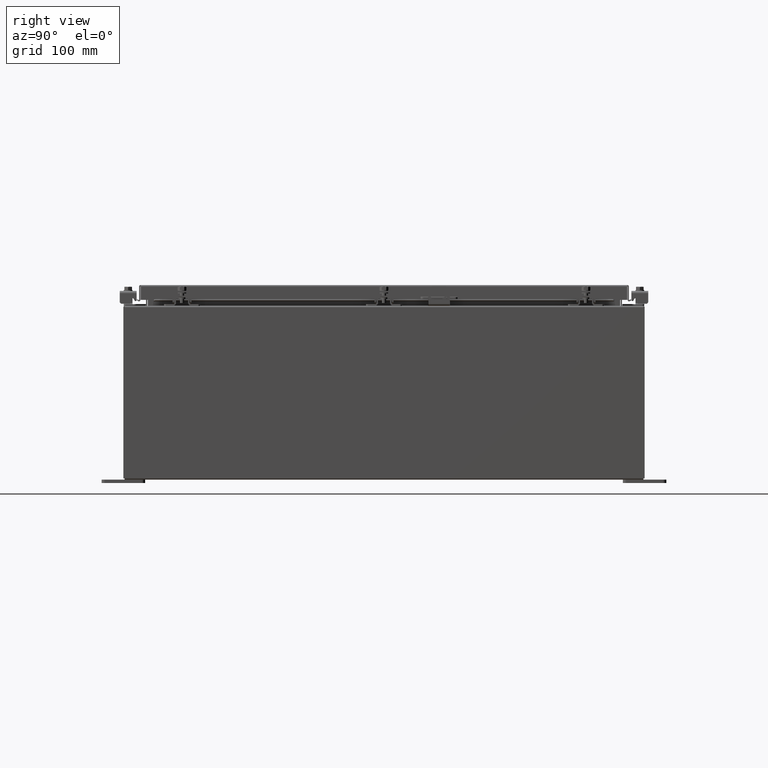
[diagram: clean part render]
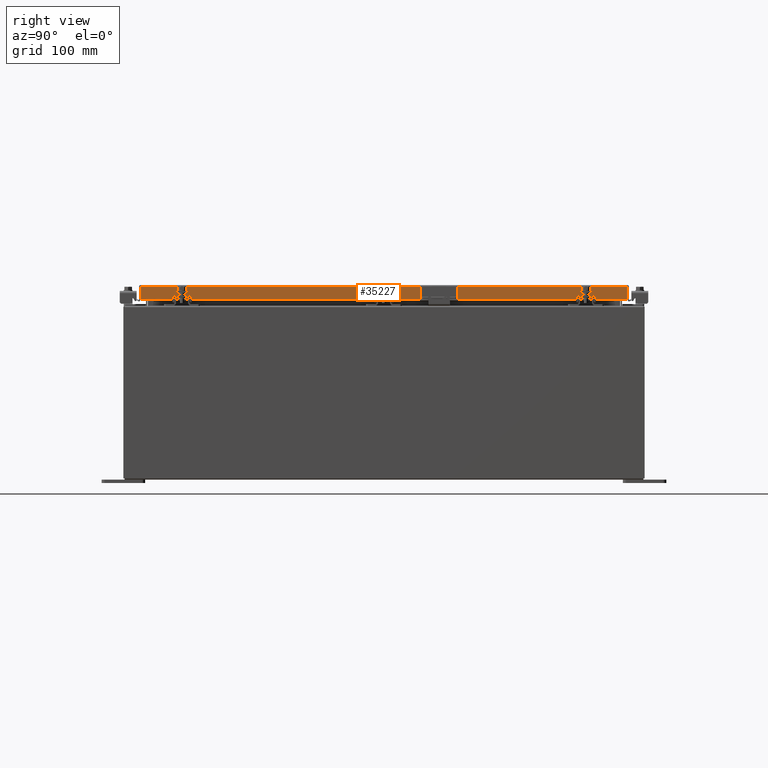
[diagram: same view with one face highlighted and labeled with its STEP entity id]
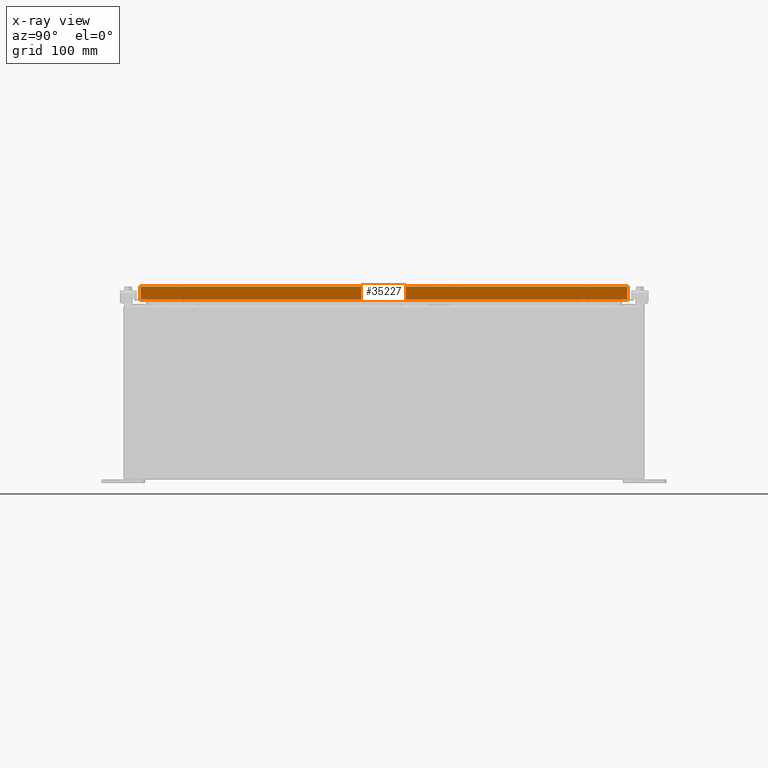
[diagram: x-ray of the same camera — body ghosted, the highlighted face saturated]
A machine part, right view. The second image highlights one B-rep face of the part: STEP entity #35227.
The next image is the same camera in x-ray: the body ghosted, the highlighted face saturated — about 0% of this face is hidden behind the body in this view.
In plain terms, the highlighted planar face has unit normal (1, 0, 0).
Its self-contained STEP definition (entity closure, byte-faithful):
#100 = LINE ( 'NONE', #961, #23306 ) ;
#418 = VERTEX_POINT ( 'NONE', #11889 ) ;
#767 = DIRECTION ( 'NONE',  ( -2.818880942772360100E-015, -6.982962677686265900E-015, 1.000000000000000000 ) ) ;
#961 = CARTESIAN_POINT ( 'NONE',  ( 11.07799999999999900, 14.00515786437626900, 1.292858714020875700E-013 ) ) ;
#1228 = DIRECTION ( 'NONE',  ( 0.0000000000000000000, -1.000000000000000000, 0.0000000000000000000 ) ) ;
#2244 = DIRECTION ( 'NONE',  ( 1.000000000000000000, 0.0000000000000000000, 2.818880942772360100E-015 ) ) ;
#2644 = CARTESIAN_POINT ( 'NONE',  ( 11.07800000000000300, -14.00515786437626400, -0.8499999999999996400 ) ) ;
#2858 = VECTOR ( 'NONE', #1228, 39.37007874015748100 ) ;
#3362 = ORIENTED_EDGE ( 'NONE', *, *, #13380, .F. ) ;
#3837 = ORIENTED_EDGE ( 'NONE', *, *, #12680, .F. ) ;
#6672 = ORIENTED_EDGE ( 'NONE', *, *, #8806, .F. ) ;
#8385 = DIRECTION ( 'NONE',  ( 0.0000000000000000000, -1.000000000000000000, 0.0000000000000000000 ) ) ;
#8425 = VECTOR ( 'NONE', #8671, 39.37007874015748100 ) ;
#8447 = VERTEX_POINT ( 'NONE', #2644 ) ;
#8671 = DIRECTION ( 'NONE',  ( -2.818880942772360100E-015, -6.982962677686265900E-015, 1.000000000000000000 ) ) ;
#8806 = EDGE_CURVE ( 'NONE', #15741, #18146, #26880, .T. ) ;
#8884 = CARTESIAN_POINT ( 'NONE',  ( 11.07799999999999900, -14.00515786437626900, -0.07469999999999978000 ) ) ;
#8901 = ORIENTED_EDGE ( 'NONE', *, *, #17041, .T. ) ;
#8984 = CARTESIAN_POINT ( 'NONE',  ( 11.07800000000000300, -14.09399999999999900, -0.8499999999999996400 ) ) ;
#9741 = ORIENTED_EDGE ( 'NONE', *, *, #23090, .T. ) ;
#10902 = CARTESIAN_POINT ( 'NONE',  ( 11.07799999999999900, 0.0000000000000000000, 3.148837674004379000E-014 ) ) ;
#11000 = VERTEX_POINT ( 'NONE', #14329 ) ;
#11043 = CARTESIAN_POINT ( 'NONE',  ( 11.07800000000000300, 14.00515786437627200, -0.8499999999999996400 ) ) ;
#11889 = CARTESIAN_POINT ( 'NONE',  ( 11.07799999999999400, -13.25515786437626400, -0.8500000000000018700 ) ) ;
#12680 = EDGE_CURVE ( 'NONE', #18146, #418, #36404, .T. ) ;
#12933 = VECTOR ( 'NONE', #16897, 39.37007874015748100 ) ;
#13297 = VERTEX_POINT ( 'NONE', #20795 ) ;
#13380 = EDGE_CURVE ( 'NONE', #418, #8447, #20648, .T. ) ;
#14295 = DIRECTION ( 'NONE',  ( 0.0000000000000000000, -1.000000000000000000, 0.0000000000000000000 ) ) ;
#14329 = CARTESIAN_POINT ( 'NONE',  ( 11.07799999999999900, 14.00515786437626500, -0.08770000000000007000 ) ) ;
#15741 = VERTEX_POINT ( 'NONE', #11043 ) ;
#15802 = EDGE_CURVE ( 'NONE', #8447, #13297, #32386, .T. ) ;
#16469 = CARTESIAN_POINT ( 'NONE',  ( 11.07799999999999400, 13.25515786437627200, -0.8500000000000018700 ) ) ;
#16897 = DIRECTION ( 'NONE',  ( 0.0000000000000000000, -1.000000000000000000, 0.0000000000000000000 ) ) ;
#17041 = EDGE_CURVE ( 'NONE', #15741, #11000, #100, .T. ) ;
#17418 = CARTESIAN_POINT ( 'NONE',  ( 11.07800000000000300, -14.09399999999999900, -0.8499999999999996400 ) ) ;
#18146 = VERTEX_POINT ( 'NONE', #25572 ) ;
#18684 = CARTESIAN_POINT ( 'NONE',  ( 11.07799999999999900, 0.0000000000000000000, -0.08770000000000007000 ) ) ;
#19185 = VECTOR ( 'NONE', #8385, 39.37007874015748100 ) ;
#20648 = LINE ( 'NONE', #17418, #12933 ) ;
#20795 = CARTESIAN_POINT ( 'NONE',  ( 11.07799999999999900, -14.00515786437626900, -0.08770000000000007000 ) ) ;
#22596 = DIRECTION ( 'NONE',  ( 2.818880942772360100E-015, 0.0000000000000000000, -1.000000000000000000 ) ) ;
#23090 = EDGE_CURVE ( 'NONE', #11000, #13297, #33642, .T. ) ;
#23306 = VECTOR ( 'NONE', #767, 39.37007874015748100 ) ;
#23472 = AXIS2_PLACEMENT_3D ( 'NONE', #10902, #2244, #22596 ) ;
#25572 = CARTESIAN_POINT ( 'NONE',  ( 11.07799999999999400, 13.25515786437626500, -0.8500000000000018700 ) ) ;
#26880 = LINE ( 'NONE', #8984, #19185 ) ;
#28810 = VECTOR ( 'NONE', #14295, 39.37007874015748100 ) ;
#31890 = ORIENTED_EDGE ( 'NONE', *, *, #15802, .F. ) ;
#32311 = FACE_OUTER_BOUND ( 'NONE', #35486, .T. ) ;
#32386 = LINE ( 'NONE', #8884, #8425 ) ;
#33642 = LINE ( 'NONE', #18684, #2858 ) ;
#35227 = ADVANCED_FACE ( 'NONE', ( #32311 ), #36887, .T. ) ;
#35486 = EDGE_LOOP ( 'NONE', ( #31890, #3362, #3837, #6672, #8901, #9741 ) ) ;
#36404 = LINE ( 'NONE', #16469, #28810 ) ;
#36887 = PLANE ( 'NONE',  #23472 ) ;